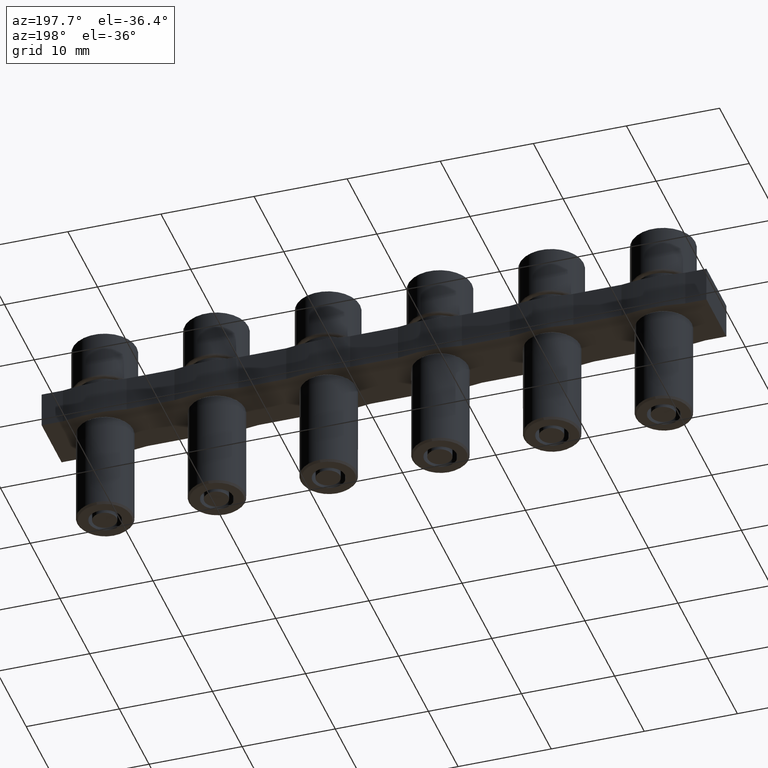
[diagram: clean part render]
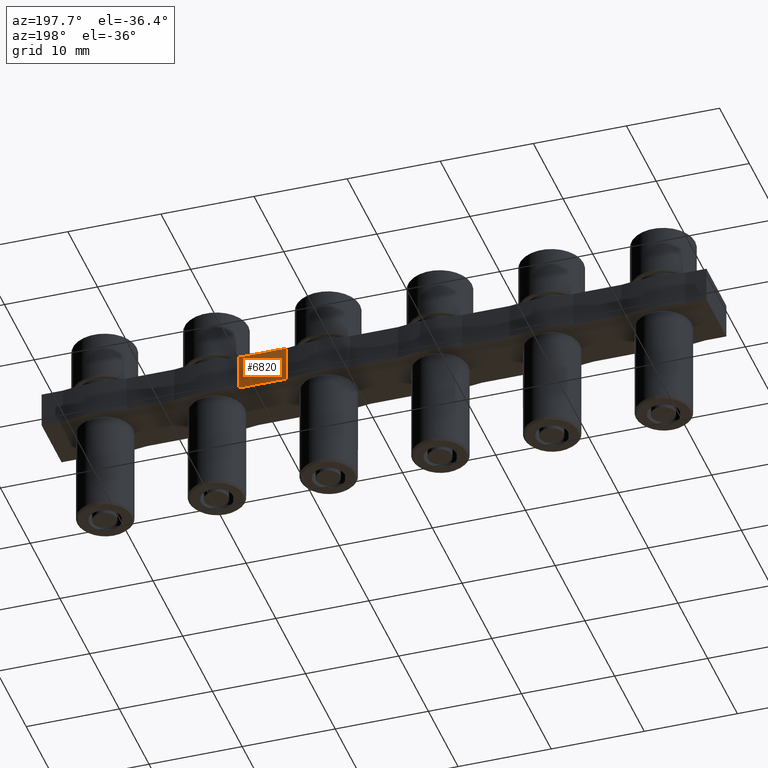
[diagram: same view with one face highlighted and labeled with its STEP entity id]
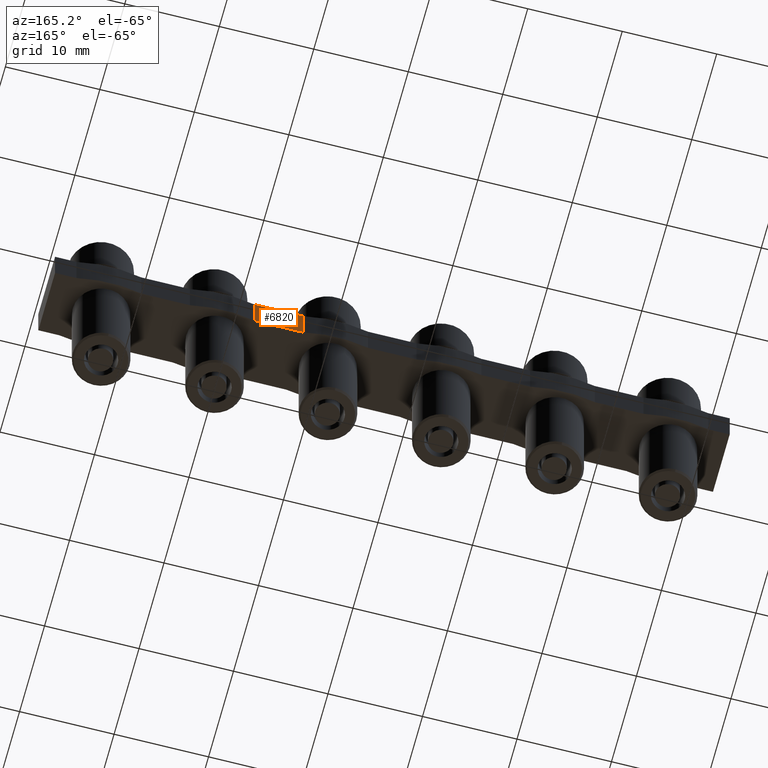
[diagram: same view with one face highlighted and labeled with its STEP entity id]
A machine part, auxiliary view. The second image highlights one B-rep face of the part: STEP entity #6820.
A second angle (auxiliary view) of the same face is appended — the face is thin or edge-on in the first view.
In plain terms, the highlighted planar face has unit normal (0, -1, 0).
Its self-contained STEP definition (entity closure, byte-faithful):
#81 = AXIS2_PLACEMENT_3D ( 'NONE', #8598, #8564, #8571 ) ;
#1535 = CARTESIAN_POINT ( 'NONE',  ( -3.426733138135080300, 3.350000000000084500, -0.9000000000000014700 ) ) ;
#1560 = CARTESIAN_POINT ( 'NONE',  ( -3.426733138135080300, 3.350000000000084500, -4.800000000000001600 ) ) ;
#1574 = CARTESIAN_POINT ( 'NONE',  ( -8.573266861864919300, 3.350000000000082700, -4.800000000000001600 ) ) ;
#1590 = CARTESIAN_POINT ( 'NONE',  ( -8.573266861864919300, 3.350000000000083600, -0.9000000000000014700 ) ) ;
#2209 = DIRECTION ( 'NONE',  ( 1.000000000000000000, -0.0000000000000000000, 0.0000000000000000000 ) ) ;
#2223 = LINE ( 'NONE', #2247, #8164 ) ;
#2247 = CARTESIAN_POINT ( 'NONE',  ( -89.85000000000005100, 3.350000000000082700, -4.800000000000001600 ) ) ;
#2291 = LINE ( 'NONE', #2320, #7202 ) ;
#2299 = LINE ( 'NONE', #2302, #7194 ) ;
#2302 = CARTESIAN_POINT ( 'NONE',  ( -3.426733138135080300, 3.350000000000084500, -4.800000000000001600 ) ) ;
#2308 = DIRECTION ( 'NONE',  ( 0.0000000000000000000, 0.0000000000000000000, 1.000000000000000000 ) ) ;
#2313 = DIRECTION ( 'NONE',  ( -1.000000000000000000, -1.245679091791856200E-016, -0.0000000000000000000 ) ) ;
#2320 = CARTESIAN_POINT ( 'NONE',  ( 4.150000000000007500, 3.350000000000084900, -0.9000000000000014700 ) ) ;
#3771 = ORIENTED_EDGE ( 'NONE', *, *, #5558, .F. ) ;
#3796 = ORIENTED_EDGE ( 'NONE', *, *, #5605, .F. ) ;
#3800 = ORIENTED_EDGE ( 'NONE', *, *, #5548, .F. ) ;
#3824 = ORIENTED_EDGE ( 'NONE', *, *, #5507, .F. ) ;
#4658 = VERTEX_POINT ( 'NONE', #1535 ) ;
#4696 = VERTEX_POINT ( 'NONE', #1560 ) ;
#4708 = VERTEX_POINT ( 'NONE', #1590 ) ;
#4720 = VERTEX_POINT ( 'NONE', #1574 ) ;
#4963 = EDGE_LOOP ( 'NONE', ( #3800, #3824, #3796, #3771 ) ) ;
#5507 = EDGE_CURVE ( 'NONE', #4720, #4696, #2223, .T. ) ;
#5548 = EDGE_CURVE ( 'NONE', #4696, #4658, #2299, .T. ) ;
#5558 = EDGE_CURVE ( 'NONE', #4658, #4708, #2291, .T. ) ;
#5605 = EDGE_CURVE ( 'NONE', #4708, #4720, #7003, .T. ) ;
#6820 = ADVANCED_FACE ( 'NONE', ( #8590 ), #8572, .F. ) ;
#6998 = DIRECTION ( 'NONE',  ( -0.0000000000000000000, -0.0000000000000000000, -1.000000000000000000 ) ) ;
#7003 = LINE ( 'NONE', #7045, #7283 ) ;
#7045 = CARTESIAN_POINT ( 'NONE',  ( -8.573266861864919300, 3.350000000000083600, -0.9000000000000014700 ) ) ;
#7194 = VECTOR ( 'NONE', #2308, 1000.000000000000000 ) ;
#7202 = VECTOR ( 'NONE', #2313, 1000.000000000000000 ) ;
#7283 = VECTOR ( 'NONE', #6998, 1000.000000000000000 ) ;
#8164 = VECTOR ( 'NONE', #2209, 1000.000000000000000 ) ;
#8564 = DIRECTION ( 'NONE',  ( 1.245679091791856200E-016, -1.000000000000000000, 0.0000000000000000000 ) ) ;
#8571 = DIRECTION ( 'NONE',  ( 1.000000000000000000, 1.245679091791856200E-016, 0.0000000000000000000 ) ) ;
#8572 = PLANE ( 'NONE',  #81 ) ;
#8590 = FACE_OUTER_BOUND ( 'NONE', #4963, .T. ) ;
#8598 = CARTESIAN_POINT ( 'NONE',  ( 4.150000000000007500, 3.350000000000084900, -0.9000000000000014700 ) ) ;